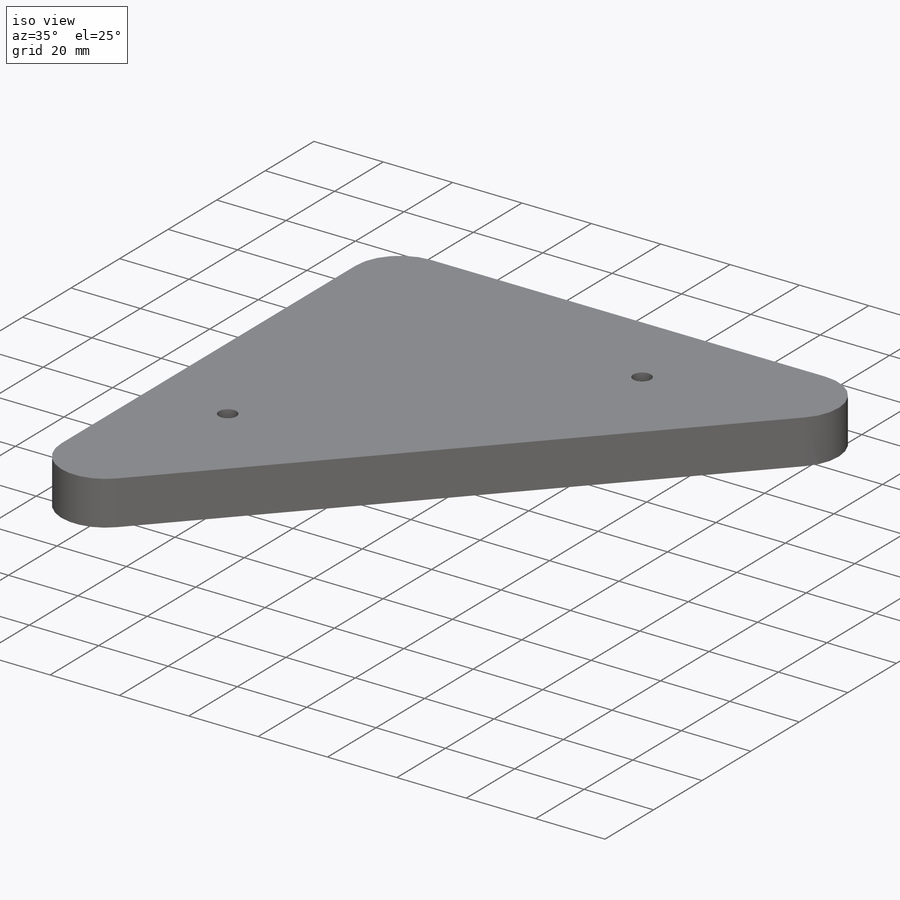
[diagram: iso view]
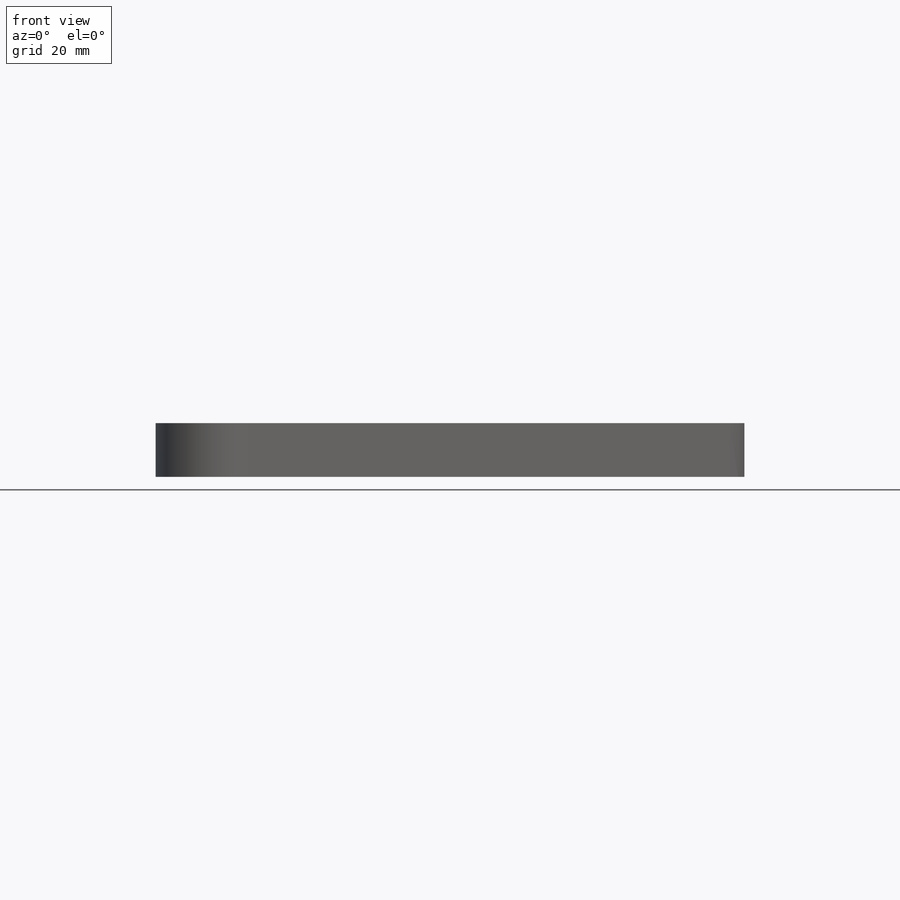
[diagram: front view]
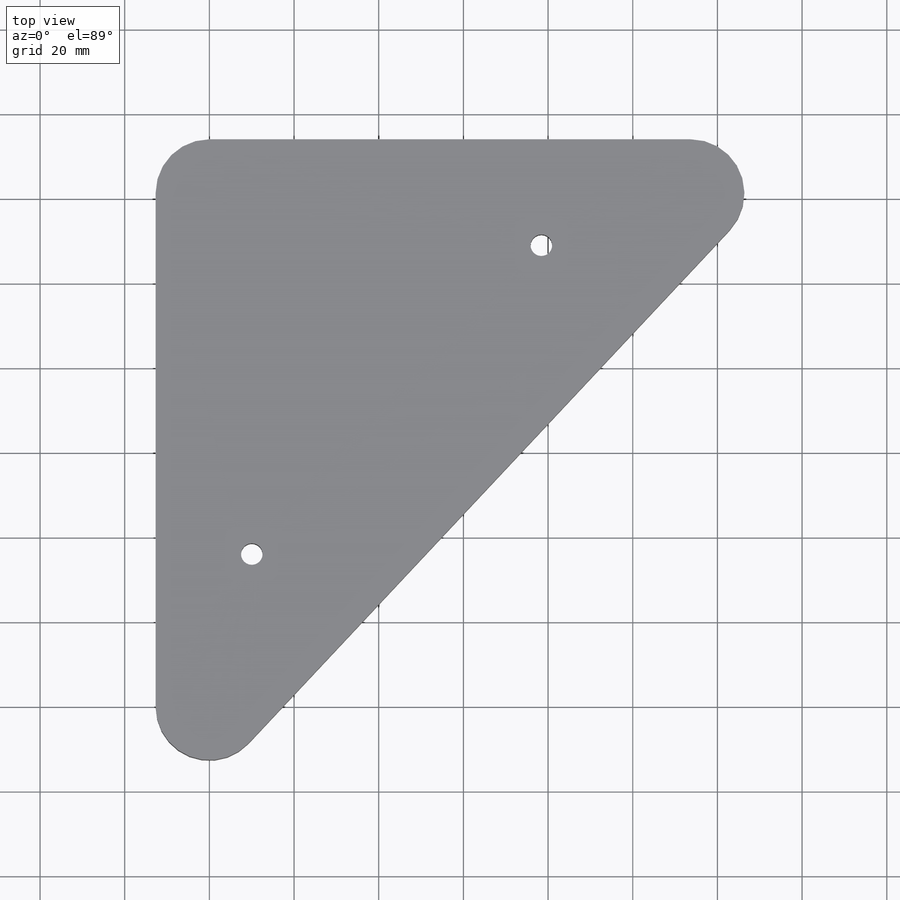
[diagram: top view]
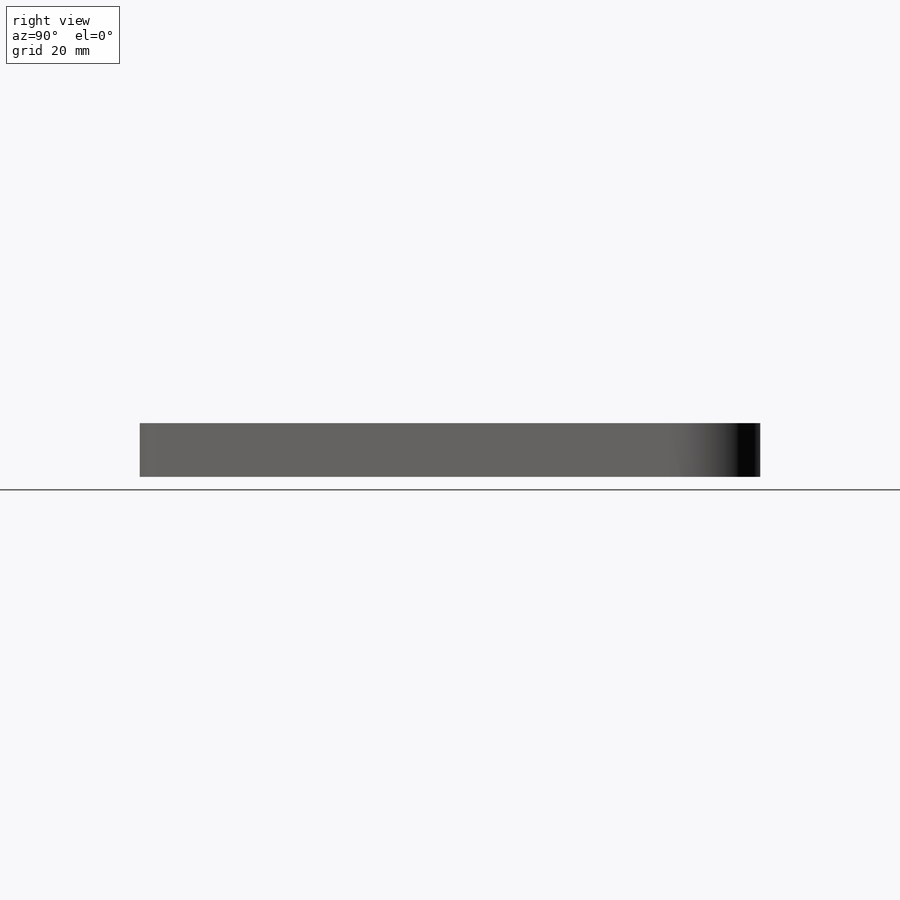
[diagram: right view]
SOLIDWORKS PART (.sldprt)
format: sldprt  version: not decoded by parser v0  size: 153,600 bytes
history: native  units: mm
features: sketch x3, thread x2, material x1, extrude x1, hole x1 (+11 scaffold rows collapsed)
feature tree (19):
  scaffold x11  (default folders/planes/origin — collapsed)
  material  "Material <not specified>"
  sketch  "Sketch1"  dims[c1.D1=~10.612208mm c1.D2=~17.484223mm c2.D1=121.25mm c2.D2=113.67mm c2.D3=~166.199974mm]
  extrude  "Boss-Extrude1"  Depth=12.7mm
  hole  "1/4-20 Tapped Hole1"  Diameter=5.1054mm Depth=19.05mm
  sketch  "3DSketch1"  dims[c1.D1=100.0mm c1.D2=30.0mm c1.D3=30.0mm c1.D4=37.35mm c1.D5=~26.363444mm c1.D6=~26.363444mm c2.D5=~26.363444mm c2.D6=~26.363444mm c3.D5=~35.143029mm c3.D6=~35.143029mm c4.D5=~35.312918mm c4.D6=~35.312918mm c5.D5=~39.417663mm c5.D6=~39.417663mm c6.D5=~37.331699mm c6.D6=~37.331699mm c7.D5=~37.346697mm c7.D6=~37.346697mm]
  sketch  "Sketch2"  dims[hole-wizard template sketch: 50 standard entries collapsed; hole parameters above]
  thread  "Hole Thread1"  Diameter=12.7mm  [1 undecoded]
  thread  "Hole Thread2"  Diameter=12.7mm  [1 undecoded]
decode coverage: 7 of 7 modeling features carry decoded parameters
note: ~ marks probable driven/reference dimensions
note: 2 parameter values undecoded
note: suppression state not decoded; provenance and decode notes live in map.json
